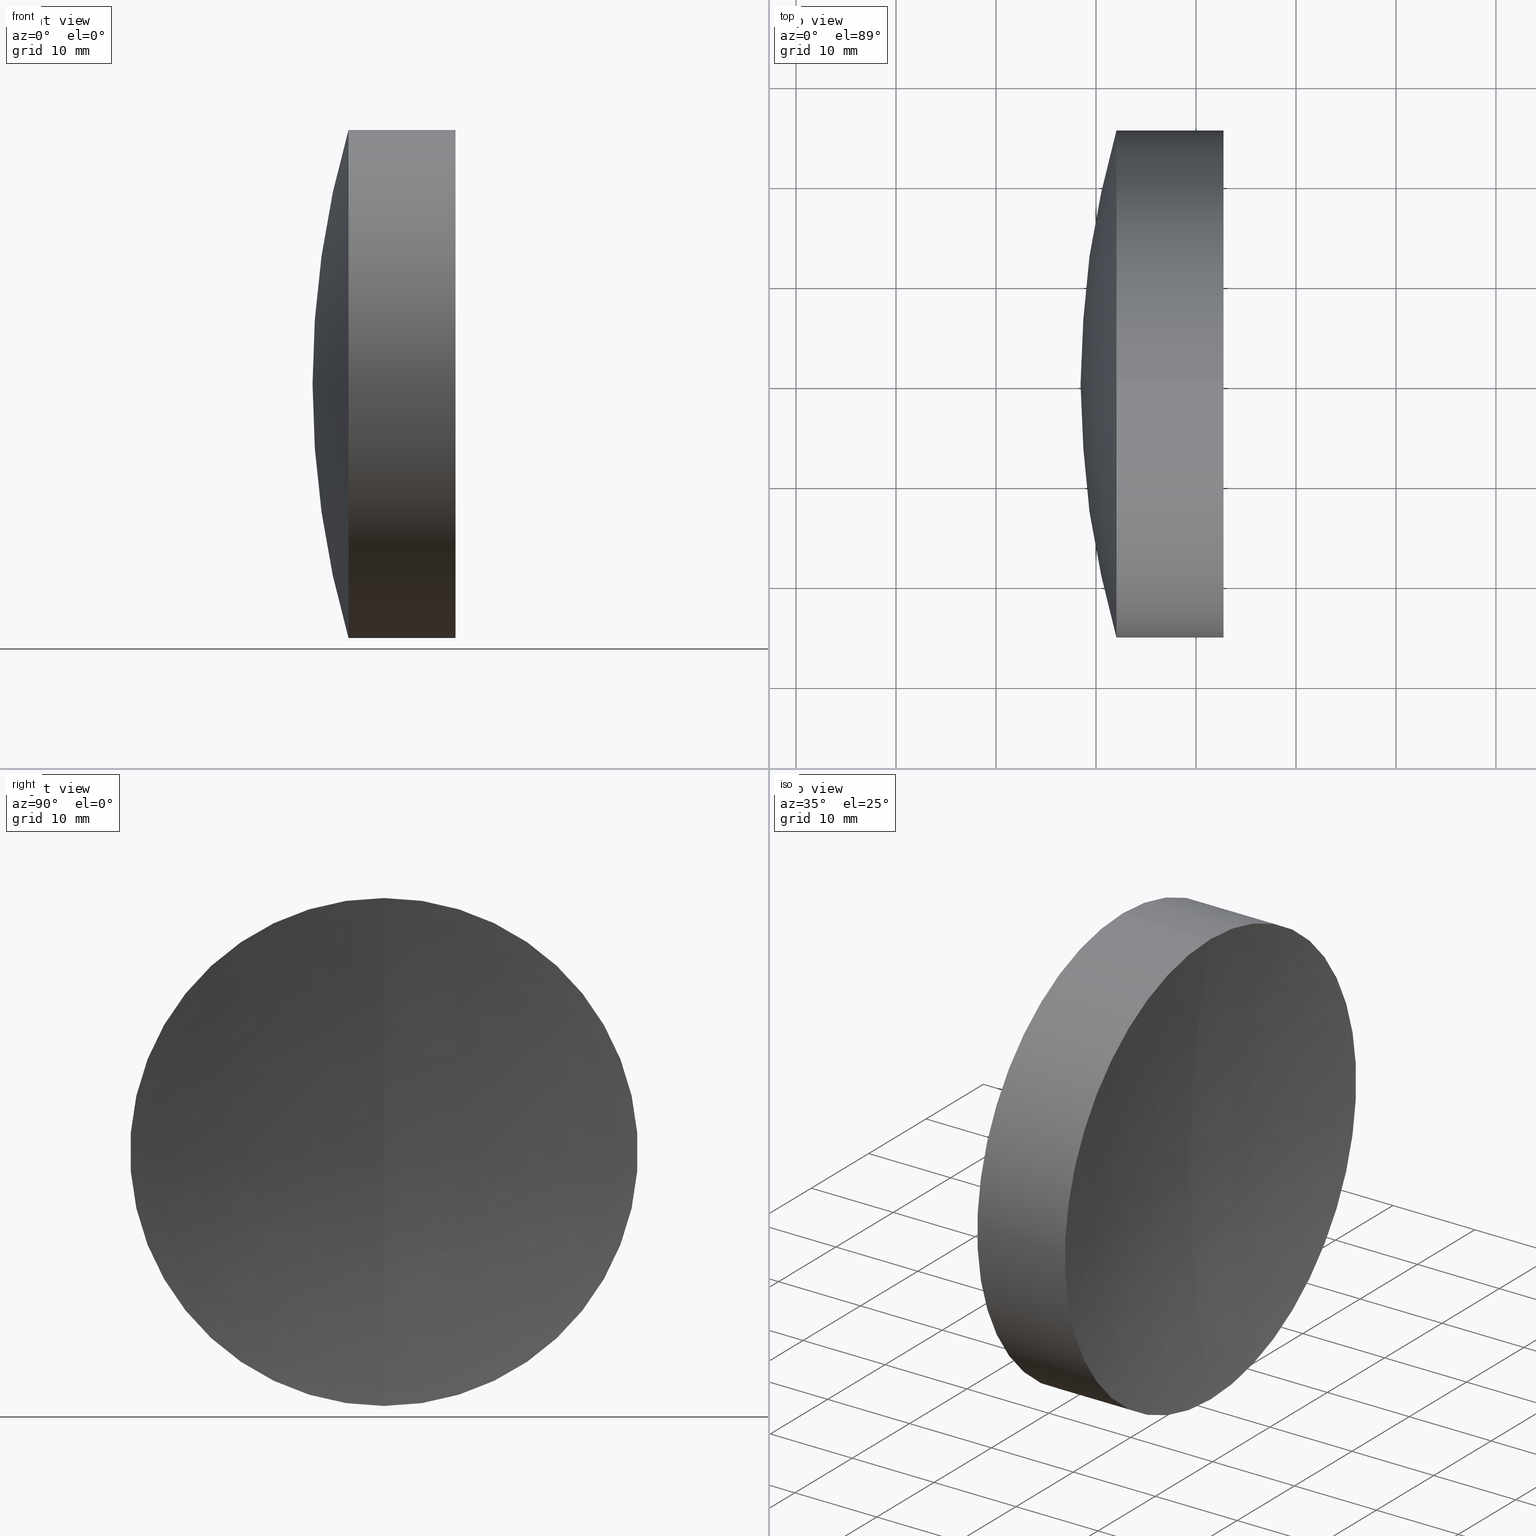
[diagram: canonical four-view strip — front | top / right | iso, engineering-drawing reading convention]
A machine part, canonical four-view strip (front | top / right | iso — engineering-drawing reading convention). The complete STEP part file that produces these views, byte-faithful:
ISO-10303-21;
HEADER;
FILE_DESCRIPTION (( 'STEP AP214' ),
    '1' );
FILE_NAME ('145185.STEP',
    '2019-06-13T02:26:19',
    ( 'user' ),
    ( '΢���й�' ),
    'SwSTEP 2.0',
    'SolidWorks 2016',
    '' );
FILE_SCHEMA (( 'AUTOMOTIVE_DESIGN' ));
ENDSEC;

DATA;
#1 = CLOSED_SHELL ( 'NONE', ( #159, #16, #187, #192, #99, #76 ) ) ;
#2 = EDGE_CURVE ( 'NONE', #286, #346, #106, .T. ) ;
#3 = DIRECTION ( 'NONE',  ( 0.0000000000000000000, 1.224646799147353500E-016, -1.000000000000000000 ) ) ;
#4 = CARTESIAN_POINT ( 'NONE',  ( 183.8303689728458900, 0.0000000000000000000, 0.0000000000000000000 ) ) ;
#5 = VERTEX_POINT ( 'NONE', #269 ) ;
#6 = AXIS2_PLACEMENT_3D ( 'NONE', #51, #226, #23 ) ;
#7 = CARTESIAN_POINT ( 'NONE',  ( 91.31375641056060000, 0.0000000000000000000, 2.802398936537134900E-014 ) ) ;
#8 = PRODUCT_DEFINITION_SHAPE ( 'NONE', 'NONE',  #195 ) ;
#9 = CARTESIAN_POINT ( 'NONE',  ( 183.8303689728458900, 0.0000000000000000000, 25.40000000000002700 ) ) ;
#10 = DIRECTION ( 'NONE',  ( -1.000000000000000000, -0.0000000000000000000, -0.0000000000000000000 ) ) ;
#11 = DIRECTION ( 'NONE',  ( 0.0000000000000000000, -1.000000000000000000, -1.224646799147353200E-016 ) ) ;
#12 = AXIS2_PLACEMENT_3D ( 'NONE', #122, #10, #36 ) ;
#13 = CARTESIAN_POINT ( 'NONE',  ( 320.8737564105606500, 0.0000000000000000000, 0.0000000000000000000 ) ) ;
#14 = ORIENTED_EDGE ( 'NONE', *, *, #272, .T. ) ;
#15 = FACE_OUTER_BOUND ( 'NONE', #236, .T. ) ;
#16 = ADVANCED_FACE ( 'NONE', ( #33 ), #176, .T. ) ;
#17 = ORIENTED_EDGE ( 'NONE', *, *, #81, .T. ) ;
#18 = EDGE_CURVE ( 'NONE', #113, #258, #252, .T. ) ;
#19 = EDGE_LOOP ( 'NONE', ( #133, #61, #108, #40 ) ) ;
#20 =( GEOMETRIC_REPRESENTATION_CONTEXT ( 3 ) GLOBAL_UNCERTAINTY_ASSIGNED_CONTEXT ( ( #205 ) ) GLOBAL_UNIT_ASSIGNED_CONTEXT ( ( #298, #107, #279 ) ) REPRESENTATION_CONTEXT ( 'NONE', 'WORKASPACE' ) );
#21 = FILL_AREA_STYLE ('',( #164 ) ) ;
#22 = CIRCLE ( 'NONE', #190, 25.40000000000002700 ) ;
#23 = DIRECTION ( 'NONE',  ( 0.0000000000000000000, 0.0000000000000000000, 1.000000000000000000 ) ) ;
#24 = ORIENTED_EDGE ( 'NONE', *, *, #301, .F. ) ;
#25 = CARTESIAN_POINT ( 'NONE',  ( -0.5519199926577972300, 0.0000000000000000000, 25.39999999999999900 ) ) ;
#26 = CARTESIAN_POINT ( 'NONE',  ( 320.8737564105606500, 0.0000000000000000000, 0.0000000000000000000 ) ) ;
#27 = CARTESIAN_POINT ( 'NONE',  ( -0.5519199926577972300, 0.0000000000000000000, 0.0000000000000000000 ) ) ;
#28 = ORIENTED_EDGE ( 'NONE', *, *, #253, .F. ) ;
#29 = AXIS2_PLACEMENT_3D ( 'NONE', #89, #262, #63 ) ;
#30 = CARTESIAN_POINT ( 'NONE',  ( 270.0737564105605800, 0.0000000000000000000, 2.915157788928457200E-014 ) ) ;
#31 =( NAMED_UNIT ( * ) PLANE_ANGLE_UNIT ( ) SI_UNIT ( $, .RADIAN. ) );
#32 = DIRECTION ( 'NONE',  ( -1.000000000000000000, -0.0000000000000000000, -0.0000000000000000000 ) ) ;
#33 = FACE_OUTER_BOUND ( 'NONE', #19, .T. ) ;
#34 = EDGE_LOOP ( 'NONE', ( #326, #46, #231 ) ) ;
#35 = CARTESIAN_POINT ( 'NONE',  ( 183.8303689728458900, 3.110602869834280400E-015, -25.40000000000002700 ) ) ;
#36 = DIRECTION ( 'NONE',  ( 0.0000000000000000000, 0.0000000000000000000, 1.000000000000000000 ) ) ;
#37 = EDGE_CURVE ( 'NONE', #335, #152, #315, .T. ) ;
#38 = DIRECTION ( 'NONE',  ( 0.0000000000000000000, 1.000000000000000000, 0.0000000000000000000 ) ) ;
#39 = FACE_OUTER_BOUND ( 'NONE', #136, .T. ) ;
#40 = ORIENTED_EDGE ( 'NONE', *, *, #81, .F. ) ;
#41 = CARTESIAN_POINT ( 'NONE',  ( -0.5519199926577972300, 0.0000000000000000000, 0.0000000000000000000 ) ) ;
#42 = ADVANCED_FACE ( 'NONE', ( #188 ), #101, .F. ) ;
#43 = ORIENTED_EDGE ( 'NONE', *, *, #37, .F. ) ;
#44 = ADVANCED_FACE ( 'NONE', ( #263 ), #91, .T. ) ;
#45 = FACE_OUTER_BOUND ( 'NONE', #77, .T. ) ;
#46 = ORIENTED_EDGE ( 'NONE', *, *, #179, .T. ) ;
#47 = AXIS2_PLACEMENT_3D ( 'NONE', #178, #64, #175 ) ;
#48 = LINE ( 'NONE', #203, #58 ) ;
#49 = APPLICATION_CONTEXT ( 'automotive_design' ) ;
#50 = VERTEX_POINT ( 'NONE', #336 ) ;
#51 = CARTESIAN_POINT ( 'NONE',  ( 192.7471612009789500, 0.0000000000000000000, 0.0000000000000000000 ) ) ;
#52 = DIRECTION ( 'NONE',  ( -1.000000000000000000, -0.0000000000000000000, -0.0000000000000000000 ) ) ;
#53 = DIRECTION ( 'NONE',  ( -1.000000000000000000, -0.0000000000000000000, -0.0000000000000000000 ) ) ;
#54 = VECTOR ( 'NONE', #92, 1000.000000000000000 ) ;
#55 = EDGE_CURVE ( 'NONE', #286, #249, #22, .T. ) ;
#56 = CARTESIAN_POINT ( 'NONE',  ( 190.2537564105606400, 0.0000000000000000000, -7.998168245231364900E-015 ) ) ;
#57 = ORIENTED_EDGE ( 'NONE', *, *, #18, .F. ) ;
#58 = VECTOR ( 'NONE', #146, 1000.000000000000000 ) ;
#59 = DIRECTION ( 'NONE',  ( -0.0000000000000000000, -1.000000000000000000, -0.0000000000000000000 ) ) ;
#60 = SURFACE_STYLE_USAGE ( .BOTH. , #261 ) ;
#61 = ORIENTED_EDGE ( 'NONE', *, *, #220, .T. ) ;
#62 = STYLED_ITEM ( 'NONE', ( #229 ), #341 ) ;
#63 = DIRECTION ( 'NONE',  ( 0.0000000000000000000, 0.0000000000000000000, 1.000000000000000000 ) ) ;
#64 = DIRECTION ( 'NONE',  ( -0.0000000000000000000, -1.000000000000000000, -0.0000000000000000000 ) ) ;
#65 = EDGE_CURVE ( 'NONE', #335, #50, #165, .T. ) ;
#66 = COLOUR_RGB ( '',1.000000000000000000, 1.000000000000000000, 1.000000000000000000 ) ;
#67 = DIRECTION ( 'NONE',  ( 0.0000000000000000000, 0.0000000000000000000, 1.000000000000000000 ) ) ;
#68 = FACE_OUTER_BOUND ( 'NONE', #281, .T. ) ;
#69 = DIRECTION ( 'NONE',  ( 0.0000000000000000000, 0.0000000000000000000, -1.000000000000000000 ) ) ;
#70 = AXIS2_PLACEMENT_3D ( 'NONE', #7, #173, #328 ) ;
#71 = MANIFOLD_SOLID_BREP ( '��ת1', #1 ) ;
#72 = CARTESIAN_POINT ( 'NONE',  ( 91.31375641056060000, 0.0000000000000000000, 2.802398936537134900E-014 ) ) ;
#73 = EDGE_LOOP ( 'NONE', ( #143, #171, #343, #277 ) ) ;
#74 = ADVANCED_FACE ( 'NONE', ( #15 ), #141, .F. ) ;
#75 = AXIS2_PLACEMENT_3D ( 'NONE', #310, #186, #244 ) ;
#76 = ADVANCED_FACE ( 'NONE', ( #213 ), #280, .T. ) ;
#77 = EDGE_LOOP ( 'NONE', ( #28, #330, #314 ) ) ;
#78 = UNCERTAINTY_MEASURE_WITH_UNIT (LENGTH_MEASURE( 1.000000000000000100E-005 ), #232, 'distance_accuracy_value', 'NONE');
#79 = DIRECTION ( 'NONE',  ( 1.000000000000000000, 0.0000000000000000000, 0.0000000000000000000 ) ) ;
#80 = PRESENTATION_LAYER_ASSIGNMENT (  '', '', ( #62 ) ) ;
#81 = EDGE_CURVE ( 'NONE', #130, #249, #132, .T. ) ;
#82 = DIRECTION ( 'NONE',  ( -1.000000000000000000, -0.0000000000000000000, -0.0000000000000000000 ) ) ;
#83 = CIRCLE ( 'NONE', #339, 91.62000000000000500 ) ;
#84 = DIRECTION ( 'NONE',  ( 0.0000000000000000000, 0.0000000000000000000, 1.000000000000000000 ) ) ;
#85 = AXIS2_PLACEMENT_3D ( 'NONE', #115, #284, #86 ) ;
#86 = DIRECTION ( 'NONE',  ( 0.0000000000000000000, -1.224646799147353200E-016, 1.000000000000000000 ) ) ;
#87 = ORIENTED_EDGE ( 'NONE', *, *, #102, .T. ) ;
#88 = FILL_AREA_STYLE ('',( #285 ) ) ;
#89 = CARTESIAN_POINT ( 'NONE',  ( 192.7471612009789500, 0.0000000000000000000, 0.0000000000000000000 ) ) ;
#90 = CARTESIAN_POINT ( 'NONE',  ( 91.31375641056060000, 0.0000000000000000000, 2.802398936537134900E-014 ) ) ;
#91 = CYLINDRICAL_SURFACE ( 'NONE', #215, 25.39999999999999900 ) ;
#92 = DIRECTION ( 'NONE',  ( -1.000000000000000000, -0.0000000000000000000, -0.0000000000000000000 ) ) ;
#93 =( NAMED_UNIT ( * ) SI_UNIT ( $, .STERADIAN. ) SOLID_ANGLE_UNIT ( ) );
#94 = VECTOR ( 'NONE', #144, 1000.000000000000000 ) ;
#95 = AXIS2_PLACEMENT_3D ( 'NONE', #127, #292, #97 ) ;
#96 = CARTESIAN_POINT ( 'NONE',  ( 182.0449861135718700, 0.0000000000000000000, 0.0000000000000000000 ) ) ;
#97 = DIRECTION ( 'NONE',  ( 0.0000000000000000000, 0.0000000000000000000, 1.000000000000000000 ) ) ;
#98 = VERTEX_POINT ( 'NONE', #264 ) ;
#99 = ADVANCED_FACE ( 'NONE', ( #334 ), #124, .T. ) ;
#100 = MECHANICAL_DESIGN_GEOMETRIC_PRESENTATION_REPRESENTATION (  '', ( #62 ), #117 ) ;
#101 = SPHERICAL_SURFACE ( 'NONE', #169, 95.94000000000002600 ) ;
#102 = EDGE_CURVE ( 'NONE', #152, #50, #200, .T. ) ;
#103 = ORIENTED_EDGE ( 'NONE', *, *, #288, .T. ) ;
#104 = AXIS2_PLACEMENT_3D ( 'NONE', #90, #208, #307 ) ;
#105 = CARTESIAN_POINT ( 'NONE',  ( 0.0000000000000000000, 0.0000000000000000000, 0.0000000000000000000 ) ) ;
#106 = CIRCLE ( 'NONE', #75, 91.62000000000000500 ) ;
#107 =( NAMED_UNIT ( * ) PLANE_ANGLE_UNIT ( ) SI_UNIT ( $, .RADIAN. ) );
#108 = ORIENTED_EDGE ( 'NONE', *, *, #198, .F. ) ;
#109 = CARTESIAN_POINT ( 'NONE',  ( 187.2537564105606400, 0.0000000000000000000, 2.214935866986149100E-014 ) ) ;
#110 = CARTESIAN_POINT ( 'NONE',  ( -0.5519199926577972300, 3.110602869834276900E-015, -25.39999999999999900 ) ) ;
#111 = AXIS2_PLACEMENT_3D ( 'NONE', #13, #184, #338 ) ;
#112 = SPHERICAL_SURFACE ( 'NONE', #104, 95.94000000000002600 ) ;
#113 = VERTEX_POINT ( 'NONE', #235 ) ;
#114 = CARTESIAN_POINT ( 'NONE',  ( 182.0449861135718700, 0.0000000000000000000, 0.0000000000000000000 ) ) ;
#115 = CARTESIAN_POINT ( 'NONE',  ( 91.31375641056060000, 0.0000000000000000000, 2.802398936537134900E-014 ) ) ;
#116 = CARTESIAN_POINT ( 'NONE',  ( 270.0737564105605800, 0.0000000000000000000, 2.915157788928457200E-014 ) ) ;
#117 =( GEOMETRIC_REPRESENTATION_CONTEXT ( 3 ) GLOBAL_UNCERTAINTY_ASSIGNED_CONTEXT ( ( #172 ) ) GLOBAL_UNIT_ASSIGNED_CONTEXT ( ( #163, #319, #137 ) ) REPRESENTATION_CONTEXT ( 'NONE', 'WORKASPACE' ) );
#118 = VERTEX_POINT ( 'NONE', #35 ) ;
#119 = DIRECTION ( 'NONE',  ( 0.0000000000000000000, 0.0000000000000000000, 1.000000000000000000 ) ) ;
#120 = EDGE_CURVE ( 'NONE', #130, #118, #273, .T. ) ;
#121 = CIRCLE ( 'NONE', #85, 95.94000000000002600 ) ;
#122 = CARTESIAN_POINT ( 'NONE',  ( -0.8160621761658039000, 0.0000000000000000000, 0.0000000000000000000 ) ) ;
#123 =( LENGTH_UNIT ( ) NAMED_UNIT ( * ) SI_UNIT ( .MILLI., .METRE. ) );
#124 = CYLINDRICAL_SURFACE ( 'NONE', #12, 25.40000000000002700 ) ;
#125 = EDGE_LOOP ( 'NONE', ( #209, #14, #17, #191 ) ) ;
#126 = FILL_AREA_STYLE_COLOUR ( '', #246 ) ;
#127 = CARTESIAN_POINT ( 'NONE',  ( 91.31375641056060000, 0.0000000000000000000, 2.802398936537134900E-014 ) ) ;
#128 = SPHERICAL_SURFACE ( 'NONE', #243, 91.62000000000000500 ) ;
#129 = STYLED_ITEM ( 'NONE', ( #182 ), #167 ) ;
#130 = VERTEX_POINT ( 'NONE', #9 ) ;
#131 = ADVANCED_FACE ( 'NONE', ( #45 ), #342, .F. ) ;
#132 = LINE ( 'NONE', #287, #54 ) ;
#133 = ORIENTED_EDGE ( 'NONE', *, *, #120, .T. ) ;
#134 = AXIS2_PLACEMENT_3D ( 'NONE', #293, #52, #138 ) ;
#135 = SHAPE_DEFINITION_REPRESENTATION ( #8, #341 ) ;
#136 = EDGE_LOOP ( 'NONE', ( #201, #103, #329 ) ) ;
#137 =( NAMED_UNIT ( * ) SI_UNIT ( $, .STERADIAN. ) SOLID_ANGLE_UNIT ( ) );
#138 = DIRECTION ( 'NONE',  ( 0.0000000000000000000, 0.0000000000000000000, 1.000000000000000000 ) ) ;
#139 = EDGE_CURVE ( 'NONE', #113, #98, #324, .T. ) ;
#140 = DIRECTION ( 'NONE',  ( 0.0000000000000000000, 1.224646799147353200E-016, -1.000000000000000000 ) ) ;
#141 = SPHERICAL_SURFACE ( 'NONE', #313, 95.94000000000002600 ) ;
#142 = CARTESIAN_POINT ( 'NONE',  ( 182.0449861135718400, 0.0000000000000000000, -25.39999999999998100 ) ) ;
#143 = ORIENTED_EDGE ( 'NONE', *, *, #316, .T. ) ;
#144 = DIRECTION ( 'NONE',  ( -1.000000000000000000, -0.0000000000000000000, -0.0000000000000000000 ) ) ;
#145 = SURFACE_STYLE_FILL_AREA ( #21 ) ;
#146 = DIRECTION ( 'NONE',  ( -1.000000000000000000, -0.0000000000000000000, -0.0000000000000000000 ) ) ;
#147 = PRESENTATION_LAYER_ASSIGNMENT (  '', '', ( #129 ) ) ;
#148 = DIRECTION ( 'NONE',  ( -0.0000000000000000000, -1.000000000000000000, -0.0000000000000000000 ) ) ;
#149 = ORIENTED_EDGE ( 'NONE', *, *, #288, .F. ) ;
#150 = CARTESIAN_POINT ( 'NONE',  ( 183.8303689728458900, 0.0000000000000000000, -25.40000000000000600 ) ) ;
#151 = CARTESIAN_POINT ( 'NONE',  ( 183.8303689728458900, 0.0000000000000000000, 0.0000000000000000000 ) ) ;
#152 = VERTEX_POINT ( 'NONE', #150 ) ;
#153 = SURFACE_SIDE_STYLE ('',( #309 ) ) ;
#154 = AXIS2_PLACEMENT_3D ( 'NONE', #214, #11, #181 ) ;
#155 = CARTESIAN_POINT ( 'NONE',  ( 91.31375641056060000, 0.0000000000000000000, 2.802398936537134900E-014 ) ) ;
#156 = DIRECTION ( 'NONE',  ( -0.0000000000000000000, -1.000000000000000000, -0.0000000000000000000 ) ) ;
#157 = CLOSED_SHELL ( 'NONE', ( #44, #271, #42, #74, #131, #245 ) ) ;
#158 = EDGE_CURVE ( 'NONE', #5, #130, #189, .T. ) ;
#159 = ADVANCED_FACE ( 'NONE', ( #266 ), #112, .T. ) ;
#160 = ORIENTED_EDGE ( 'NONE', *, *, #332, .T. ) ;
#161 = MECHANICAL_DESIGN_GEOMETRIC_PRESENTATION_REPRESENTATION (  '', ( #129 ), #185 ) ;
#162 = PRODUCT_DEFINITION_CONTEXT ( 'detailed design', #49, 'design' ) ;
#163 =( LENGTH_UNIT ( ) NAMED_UNIT ( * ) SI_UNIT ( .MILLI., .METRE. ) );
#164 = FILL_AREA_STYLE_COLOUR ( '', #197 ) ;
#165 = CIRCLE ( 'NONE', #154, 95.94000000000002600 ) ;
#166 = CARTESIAN_POINT ( 'NONE',  ( 270.0737564105605800, 0.0000000000000000000, 2.915157788928457200E-014 ) ) ;
#167 = MANIFOLD_SOLID_BREP ( '��ת2', #157 ) ;
#168 = DIRECTION ( 'NONE',  ( -0.0000000000000000000, -1.000000000000000000, -0.0000000000000000000 ) ) ;
#169 = AXIS2_PLACEMENT_3D ( 'NONE', #72, #156, #69 ) ;
#170 = DIRECTION ( 'NONE',  ( -1.000000000000000000, -0.0000000000000000000, -0.0000000000000000000 ) ) ;
#171 = ORIENTED_EDGE ( 'NONE', *, *, #301, .T. ) ;
#172 = UNCERTAINTY_MEASURE_WITH_UNIT (LENGTH_MEASURE( 1.000000000000000100E-005 ), #163, 'distance_accuracy_value', 'NONE');
#173 = DIRECTION ( 'NONE',  ( 0.0000000000000000000, -1.000000000000000000, 0.0000000000000000000 ) ) ;
#174 = AXIS2_PLACEMENT_3D ( 'NONE', #105, #278, #79 ) ;
#175 = DIRECTION ( 'NONE',  ( 0.0000000000000000000, 0.0000000000000000000, -1.000000000000000000 ) ) ;
#176 = CYLINDRICAL_SURFACE ( 'NONE', #134, 25.40000000000002700 ) ;
#177 = ORIENTED_EDGE ( 'NONE', *, *, #65, .T. ) ;
#178 = CARTESIAN_POINT ( 'NONE',  ( 320.8737564105606500, 0.0000000000000000000, 0.0000000000000000000 ) ) ;
#179 = EDGE_CURVE ( 'NONE', #5, #118, #121, .T. ) ;
#180 = DIRECTION ( 'NONE',  ( 0.0000000000000000000, 0.0000000000000000000, 1.000000000000000000 ) ) ;
#181 = DIRECTION ( 'NONE',  ( 0.0000000000000000000, 1.224646799147353200E-016, -1.000000000000000000 ) ) ;
#182 = PRESENTATION_STYLE_ASSIGNMENT (( #60 ) ) ;
#183 = ORIENTED_EDGE ( 'NONE', *, *, #253, .T. ) ;
#184 = DIRECTION ( 'NONE',  ( 0.0000000000000000000, 1.000000000000000000, -0.0000000000000000000 ) ) ;
#185 =( GEOMETRIC_REPRESENTATION_CONTEXT ( 3 ) GLOBAL_UNCERTAINTY_ASSIGNED_CONTEXT ( ( #78 ) ) GLOBAL_UNIT_ASSIGNED_CONTEXT ( ( #232, #31, #207 ) ) REPRESENTATION_CONTEXT ( 'NONE', 'WORKASPACE' ) );
#186 = DIRECTION ( 'NONE',  ( 0.0000000000000000000, 1.000000000000000000, -0.0000000000000000000 ) ) ;
#187 = ADVANCED_FACE ( 'NONE', ( #39 ), #331, .T. ) ;
#188 = FACE_OUTER_BOUND ( 'NONE', #297, .T. ) ;
#189 = CIRCLE ( 'NONE', #70, 95.94000000000002600 ) ;
#190 = AXIS2_PLACEMENT_3D ( 'NONE', #96, #265, #67 ) ;
#191 = ORIENTED_EDGE ( 'NONE', *, *, #55, .F. ) ;
#192 = ADVANCED_FACE ( 'NONE', ( #211 ), #128, .T. ) ;
#193 = ORIENTED_EDGE ( 'NONE', *, *, #2, .T. ) ;
#194 = SURFACE_SIDE_STYLE ('',( #145 ) ) ;
#195 = PRODUCT_DEFINITION ( 'δ֪', '', #219, #162 ) ;
#196 = CARTESIAN_POINT ( 'NONE',  ( 178.4537564105605700, 0.0000000000000000000, 2.354147090239054500E-014 ) ) ;
#197 = COLOUR_RGB ( '',1.000000000000000000, 1.000000000000000000, 1.000000000000000000 ) ;
#198 = EDGE_CURVE ( 'NONE', #249, #286, #337, .T. ) ;
#199 = DIRECTION ( 'NONE',  ( 0.0000000000000000000, -1.000000000000000000, -1.224646799147353200E-016 ) ) ;
#200 = CIRCLE ( 'NONE', #345, 25.39999999999999900 ) ;
#201 = ORIENTED_EDGE ( 'NONE', *, *, #55, .T. ) ;
#202 = DIRECTION ( 'NONE',  ( 0.0000000000000000000, 0.0000000000000000000, 1.000000000000000000 ) ) ;
#203 = CARTESIAN_POINT ( 'NONE',  ( -0.8160621761658039000, 3.110602869834280400E-015, -25.40000000000002700 ) ) ;
#204 = CIRCLE ( 'NONE', #260, 25.39999999999999900 ) ;
#205 = UNCERTAINTY_MEASURE_WITH_UNIT (LENGTH_MEASURE( 1.000000000000000100E-005 ), #298, 'distance_accuracy_value', 'NONE');
#206 = AXIS2_PLACEMENT_3D ( 'NONE', #114, #283, #84 ) ;
#207 =( NAMED_UNIT ( * ) SI_UNIT ( $, .STERADIAN. ) SOLID_ANGLE_UNIT ( ) );
#208 = DIRECTION ( 'NONE',  ( 0.0000000000000000000, 1.000000000000000000, 0.0000000000000000000 ) ) ;
#209 = ORIENTED_EDGE ( 'NONE', *, *, #220, .F. ) ;
#210 = DIRECTION ( 'NONE',  ( 0.0000000000000000000, 0.0000000000000000000, 1.000000000000000000 ) ) ;
#211 = FACE_OUTER_BOUND ( 'NONE', #320, .T. ) ;
#212 = CARTESIAN_POINT ( 'NONE',  ( 91.31375641056060000, 0.0000000000000000000, 2.802398936537134900E-014 ) ) ;
#213 = FACE_OUTER_BOUND ( 'NONE', #317, .T. ) ;
#214 = CARTESIAN_POINT ( 'NONE',  ( 91.31375641056060000, 0.0000000000000000000, 2.802398936537134900E-014 ) ) ;
#215 = AXIS2_PLACEMENT_3D ( 'NONE', #41, #216, #241 ) ;
#216 = DIRECTION ( 'NONE',  ( -1.000000000000000000, -0.0000000000000000000, -0.0000000000000000000 ) ) ;
#217 = FACE_OUTER_BOUND ( 'NONE', #340, .T. ) ;
#218 = ORIENTED_EDGE ( 'NONE', *, *, #316, .F. ) ;
#219 = PRODUCT_DEFINITION_FORMATION_WITH_SPECIFIED_SOURCE ( '�κ�', '', #254, .NOT_KNOWN. ) ;
#220 = EDGE_CURVE ( 'NONE', #118, #286, #48, .T. ) ;
#221 = CYLINDRICAL_SURFACE ( 'NONE', #306, 25.39999999999999900 ) ;
#222 = AXIS2_PLACEMENT_3D ( 'NONE', #116, #148, #259 ) ;
#223 = ORIENTED_EDGE ( 'NONE', *, *, #37, .T. ) ;
#224 = APPLICATION_PROTOCOL_DEFINITION ( 'draft international standard', 'automotive_design', 1998, #49 ) ;
#225 = APPLICATION_CONTEXT ( 'automotive_design' ) ;
#226 = DIRECTION ( 'NONE',  ( -1.000000000000000000, -0.0000000000000000000, -0.0000000000000000000 ) ) ;
#227 = DIRECTION ( 'NONE',  ( 0.0000000000000000000, 0.0000000000000000000, 1.000000000000000000 ) ) ;
#228 = CARTESIAN_POINT ( 'NONE',  ( 320.8737564105606500, 0.0000000000000000000, 0.0000000000000000000 ) ) ;
#229 = PRESENTATION_STYLE_ASSIGNMENT (( #347 ) ) ;
#230 = STYLED_ITEM ( 'NONE', ( #299 ), #71 ) ;
#231 = ORIENTED_EDGE ( 'NONE', *, *, #120, .F. ) ;
#232 =( LENGTH_UNIT ( ) NAMED_UNIT ( * ) SI_UNIT ( .MILLI., .METRE. ) );
#233 = PRODUCT_RELATED_PRODUCT_CATEGORY ( 'part', '', ( #254 ) ) ;
#234 = CARTESIAN_POINT ( 'NONE',  ( 183.8303689728458900, 0.0000000000000000000, 0.0000000000000000000 ) ) ;
#235 = CARTESIAN_POINT ( 'NONE',  ( 192.7471612009789500, 0.0000000000000000000, -25.39999999999998400 ) ) ;
#236 = EDGE_LOOP ( 'NONE', ( #289, #223, #87 ) ) ;
#237 = EDGE_CURVE ( 'NONE', #50, #152, #204, .T. ) ;
#238 = DIRECTION ( 'NONE',  ( 0.0000000000000000000, 0.0000000000000000000, -1.000000000000000000 ) ) ;
#239 = LINE ( 'NONE', #110, #94 ) ;
#240 = DIRECTION ( 'NONE',  ( -0.0000000000000000000, -1.000000000000000000, -0.0000000000000000000 ) ) ;
#241 = DIRECTION ( 'NONE',  ( 0.0000000000000000000, 0.0000000000000000000, 1.000000000000000000 ) ) ;
#242 = ORIENTED_EDGE ( 'NONE', *, *, #179, .F. ) ;
#243 = AXIS2_PLACEMENT_3D ( 'NONE', #30, #59, #305 ) ;
#244 = DIRECTION ( 'NONE',  ( 0.0000000000000000000, 0.0000000000000000000, 1.000000000000000000 ) ) ;
#245 = ADVANCED_FACE ( 'NONE', ( #217 ), #221, .T. ) ;
#246 = COLOUR_RGB ( '',1.000000000000000000, 1.000000000000000000, 1.000000000000000000 ) ;
#247 = LINE ( 'NONE', #25, #311 ) ;
#248 = PRESENTATION_LAYER_ASSIGNMENT (  '', '', ( #230 ) ) ;
#249 = VERTEX_POINT ( 'NONE', #303 ) ;
#250 = PRODUCT_CONTEXT ( 'NONE', #225, 'mechanical' ) ;
#251 = APPLICATION_PROTOCOL_DEFINITION ( 'draft international standard', 'automotive_design', 1998, #225 ) ;
#252 = CIRCLE ( 'NONE', #111, 130.6200000000000000 ) ;
#253 = EDGE_CURVE ( 'NONE', #98, #258, #275, .T. ) ;
#254 = PRODUCT ( '145185', '145185', '', ( #250 ) ) ;
#255 = CARTESIAN_POINT ( 'NONE',  ( 183.8303689728458900, 0.0000000000000000000, 0.0000000000000000000 ) ) ;
#256 = SURFACE_STYLE_FILL_AREA ( #88 ) ;
#257 = DIRECTION ( 'NONE',  ( -1.000000000000000000, -0.0000000000000000000, -0.0000000000000000000 ) ) ;
#258 = VERTEX_POINT ( 'NONE', #56 ) ;
#259 = DIRECTION ( 'NONE',  ( 0.0000000000000000000, 0.0000000000000000000, -1.000000000000000000 ) ) ;
#260 = AXIS2_PLACEMENT_3D ( 'NONE', #4, #170, #325 ) ;
#261 = SURFACE_SIDE_STYLE ('',( #256 ) ) ;
#262 = DIRECTION ( 'NONE',  ( -1.000000000000000000, -0.0000000000000000000, -0.0000000000000000000 ) ) ;
#263 = FACE_OUTER_BOUND ( 'NONE', #73, .T. ) ;
#264 = CARTESIAN_POINT ( 'NONE',  ( 192.7471612009789500, -3.110602869834275700E-015, 25.39999999999998400 ) ) ;
#265 = DIRECTION ( 'NONE',  ( -1.000000000000000000, -0.0000000000000000000, -0.0000000000000000000 ) ) ;
#266 = FACE_OUTER_BOUND ( 'NONE', #34, .T. ) ;
#267 = ORIENTED_EDGE ( 'NONE', *, *, #102, .F. ) ;
#268 = MECHANICAL_DESIGN_GEOMETRIC_PRESENTATION_REPRESENTATION (  '', ( #230 ), #282 ) ;
#269 = CARTESIAN_POINT ( 'NONE',  ( 187.2537564105606400, 0.0000000000000000000, 3.389862006088120700E-014 ) ) ;
#270 = ORIENTED_EDGE ( 'NONE', *, *, #139, .T. ) ;
#271 = ADVANCED_FACE ( 'NONE', ( #68 ), #344, .F. ) ;
#272 = EDGE_CURVE ( 'NONE', #118, #130, #291, .T. ) ;
#273 = CIRCLE ( 'NONE', #296, 25.40000000000002700 ) ;
#274 = ORIENTED_EDGE ( 'NONE', *, *, #237, .T. ) ;
#275 = CIRCLE ( 'NONE', #295, 130.6200000000000000 ) ;
#276 = AXIS2_PLACEMENT_3D ( 'NONE', #255, #53, #227 ) ;
#277 = ORIENTED_EDGE ( 'NONE', *, *, #332, .F. ) ;
#278 = DIRECTION ( 'NONE',  ( 0.0000000000000000000, 0.0000000000000000000, 1.000000000000000000 ) ) ;
#279 =( NAMED_UNIT ( * ) SI_UNIT ( $, .STERADIAN. ) SOLID_ANGLE_UNIT ( ) );
#280 = SPHERICAL_SURFACE ( 'NONE', #327, 95.94000000000002600 ) ;
#281 = EDGE_LOOP ( 'NONE', ( #218, #183, #57 ) ) ;
#282 =( GEOMETRIC_REPRESENTATION_CONTEXT ( 3 ) GLOBAL_UNCERTAINTY_ASSIGNED_CONTEXT ( ( #322 ) ) GLOBAL_UNIT_ASSIGNED_CONTEXT ( ( #123, #290, #93 ) ) REPRESENTATION_CONTEXT ( 'NONE', 'WORKASPACE' ) );
#283 = DIRECTION ( 'NONE',  ( -1.000000000000000000, -0.0000000000000000000, -0.0000000000000000000 ) ) ;
#284 = DIRECTION ( 'NONE',  ( -0.0000000000000000000, 1.000000000000000000, 1.224646799147353200E-016 ) ) ;
#285 = FILL_AREA_STYLE_COLOUR ( '', #66 ) ;
#286 = VERTEX_POINT ( 'NONE', #142 ) ;
#287 = CARTESIAN_POINT ( 'NONE',  ( -0.8160621761658039000, 0.0000000000000000000, 25.40000000000002700 ) ) ;
#288 = EDGE_CURVE ( 'NONE', #249, #346, #83, .T. ) ;
#289 = ORIENTED_EDGE ( 'NONE', *, *, #65, .F. ) ;
#290 =( NAMED_UNIT ( * ) PLANE_ANGLE_UNIT ( ) SI_UNIT ( $, .RADIAN. ) );
#291 = CIRCLE ( 'NONE', #276, 25.40000000000002700 ) ;
#292 = DIRECTION ( 'NONE',  ( 0.0000000000000000000, 1.000000000000000000, -0.0000000000000000000 ) ) ;
#293 = CARTESIAN_POINT ( 'NONE',  ( -0.8160621761658039000, 0.0000000000000000000, 0.0000000000000000000 ) ) ;
#294 = ORIENTED_EDGE ( 'NONE', *, *, #272, .F. ) ;
#295 = AXIS2_PLACEMENT_3D ( 'NONE', #26, #199, #3 ) ;
#296 = AXIS2_PLACEMENT_3D ( 'NONE', #234, #32, #210 ) ;
#297 = EDGE_LOOP ( 'NONE', ( #43, #177, #274 ) ) ;
#298 =( LENGTH_UNIT ( ) NAMED_UNIT ( * ) SI_UNIT ( .MILLI., .METRE. ) );
#299 = PRESENTATION_STYLE_ASSIGNMENT (( #312 ) ) ;
#300 = ORIENTED_EDGE ( 'NONE', *, *, #198, .T. ) ;
#301 = EDGE_CURVE ( 'NONE', #113, #152, #239, .T. ) ;
#302 = CIRCLE ( 'NONE', #6, 25.39999999999999900 ) ;
#303 = CARTESIAN_POINT ( 'NONE',  ( 182.0449861135718400, -3.110602869834274900E-015, 25.40000000000000900 ) ) ;
#304 = ORIENTED_EDGE ( 'NONE', *, *, #158, .T. ) ;
#305 = DIRECTION ( 'NONE',  ( 0.0000000000000000000, 0.0000000000000000000, -1.000000000000000000 ) ) ;
#306 = AXIS2_PLACEMENT_3D ( 'NONE', #27, #257, #202 ) ;
#307 = DIRECTION ( 'NONE',  ( 0.0000000000000000000, 0.0000000000000000000, 1.000000000000000000 ) ) ;
#308 = DIRECTION ( 'NONE',  ( -1.000000000000000000, -0.0000000000000000000, -0.0000000000000000000 ) ) ;
#309 = SURFACE_STYLE_FILL_AREA ( #333 ) ;
#310 = CARTESIAN_POINT ( 'NONE',  ( 270.0737564105605800, 0.0000000000000000000, 2.915157788928457200E-014 ) ) ;
#311 = VECTOR ( 'NONE', #82, 1000.000000000000000 ) ;
#312 = SURFACE_STYLE_USAGE ( .BOTH. , #153 ) ;
#313 = AXIS2_PLACEMENT_3D ( 'NONE', #155, #240, #238 ) ;
#314 = ORIENTED_EDGE ( 'NONE', *, *, #18, .T. ) ;
#315 = CIRCLE ( 'NONE', #95, 95.94000000000002600 ) ;
#316 = EDGE_CURVE ( 'NONE', #98, #113, #302, .T. ) ;
#317 = EDGE_LOOP ( 'NONE', ( #242, #304, #294 ) ) ;
#318 = AXIS2_PLACEMENT_3D ( 'NONE', #228, #168, #323 ) ;
#319 =( NAMED_UNIT ( * ) PLANE_ANGLE_UNIT ( ) SI_UNIT ( $, .RADIAN. ) );
#320 = EDGE_LOOP ( 'NONE', ( #149, #300, #193 ) ) ;
#321 = DIRECTION ( 'NONE',  ( 0.0000000000000000000, -1.000000000000000000, -1.224646799147353200E-016 ) ) ;
#322 = UNCERTAINTY_MEASURE_WITH_UNIT (LENGTH_MEASURE( 1.000000000000000100E-005 ), #123, 'distance_accuracy_value', 'NONE');
#323 = DIRECTION ( 'NONE',  ( 0.0000000000000000000, 0.0000000000000000000, -1.000000000000000000 ) ) ;
#324 = CIRCLE ( 'NONE', #29, 25.39999999999999900 ) ;
#325 = DIRECTION ( 'NONE',  ( 0.0000000000000000000, 0.0000000000000000000, 1.000000000000000000 ) ) ;
#326 = ORIENTED_EDGE ( 'NONE', *, *, #158, .F. ) ;
#327 = AXIS2_PLACEMENT_3D ( 'NONE', #212, #38, #180 ) ;
#328 = DIRECTION ( 'NONE',  ( 0.0000000000000000000, 0.0000000000000000000, -1.000000000000000000 ) ) ;
#329 = ORIENTED_EDGE ( 'NONE', *, *, #2, .F. ) ;
#330 = ORIENTED_EDGE ( 'NONE', *, *, #139, .F. ) ;
#331 = SPHERICAL_SURFACE ( 'NONE', #222, 91.62000000000000500 ) ;
#332 = EDGE_CURVE ( 'NONE', #98, #50, #247, .T. ) ;
#333 = FILL_AREA_STYLE ('',( #126 ) ) ;
#334 = FACE_OUTER_BOUND ( 'NONE', #125, .T. ) ;
#335 = VERTEX_POINT ( 'NONE', #109 ) ;
#336 = CARTESIAN_POINT ( 'NONE',  ( 183.8303689728458900, -3.110602869834278000E-015, 25.40000000000003400 ) ) ;
#337 = CIRCLE ( 'NONE', #206, 25.40000000000002700 ) ;
#338 = DIRECTION ( 'NONE',  ( 0.0000000000000000000, 0.0000000000000000000, 1.000000000000000000 ) ) ;
#339 = AXIS2_PLACEMENT_3D ( 'NONE', #166, #321, #140 ) ;
#340 = EDGE_LOOP ( 'NONE', ( #24, #270, #160, #267 ) ) ;
#341 = ADVANCED_BREP_SHAPE_REPRESENTATION ( '145185', ( #71, #167, #174 ), #20 ) ;
#342 = SPHERICAL_SURFACE ( 'NONE', #47, 130.6200000000000000 ) ;
#343 = ORIENTED_EDGE ( 'NONE', *, *, #237, .F. ) ;
#344 = SPHERICAL_SURFACE ( 'NONE', #318, 130.6200000000000000 ) ;
#345 = AXIS2_PLACEMENT_3D ( 'NONE', #151, #308, #119 ) ;
#346 = VERTEX_POINT ( 'NONE', #196 ) ;
#347 = SURFACE_STYLE_USAGE ( .BOTH. , #194 ) ;
ENDSEC;
END-ISO-10303-21;
